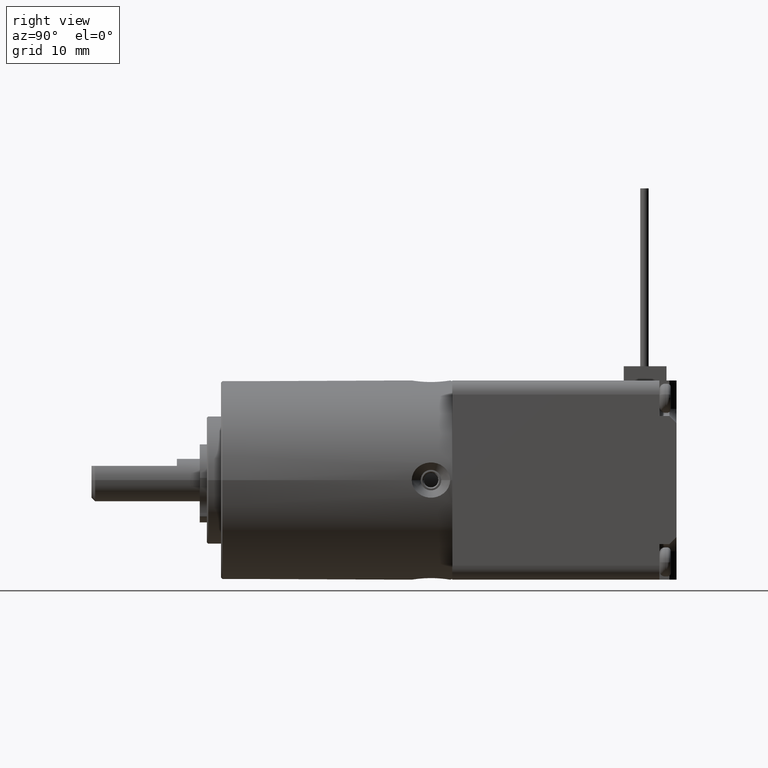
[diagram: clean part render]
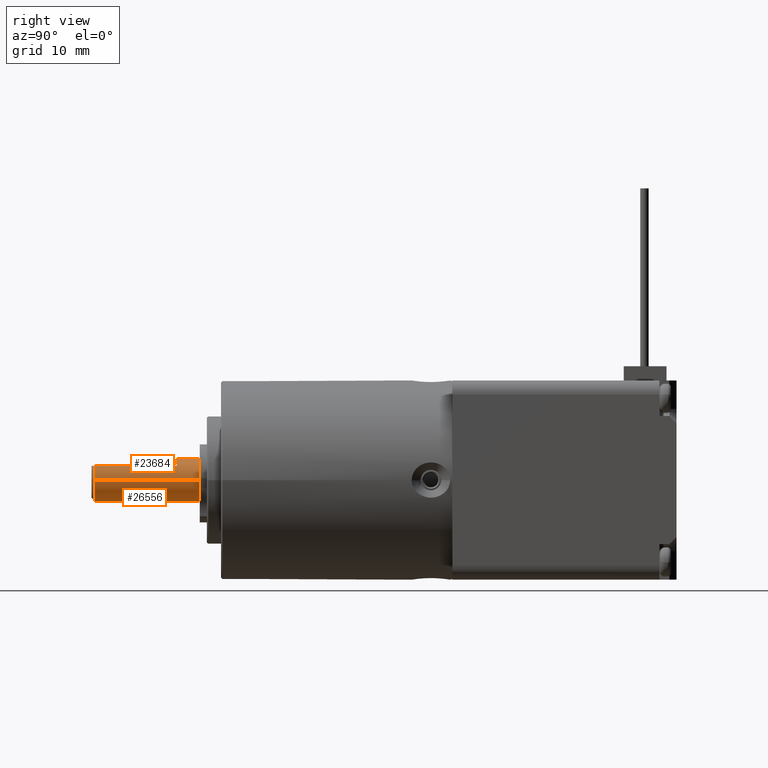
[diagram: same view with one multi-face feature highlighted, each face labeled with its STEP entity id]
A machine part, right view. The highlighted faces form ONE feature: a constant-radius fillet chain: 2 tangent blend faces with common blend radius 3 mm. The faces share edges in the B-rep.
Their STEP definitions:
[1] entity #23684 (Cylinder):
#514 = EDGE_CURVE ( 'NONE', #23940, #24827, #26261, .T. ) ;
#515 = DIRECTION ( 'NONE',  ( 0.000000000000000000, 0.000000000000000000, -1.000000000000000000 ) ) ;
#862 = CARTESIAN_POINT ( 'NONE',  ( 3.000000000000000444, 3.673940397442060361E-16, 27.19999999999999929 ) ) ;
#1060 = CARTESIAN_POINT ( 'NONE',  ( -3.000000000000000444, 0.000000000000000000, 11.99999999999999822 ) ) ;
#1287 = CYLINDRICAL_SURFACE ( 'NONE', #15811, 3.000000000000000444 ) ;
#1372 = LINE ( 'NONE', #11130, #21516 ) ;
#1672 = ORIENTED_EDGE ( 'NONE', *, *, #21352, .T. ) ;
#2316 = ORIENTED_EDGE ( 'NONE', *, *, #16466, .T. ) ;
#2915 = DIRECTION ( 'NONE',  ( 1.000000000000000000, -5.329070518200751394E-15, 0.000000000000000000 ) ) ;
#3264 = LINE ( 'NONE', #862, #15472 ) ;
#4136 = ORIENTED_EDGE ( 'NONE', *, *, #14911, .T. ) ;
#4521 = CARTESIAN_POINT ( 'NONE',  ( 3.000000000000000444, 3.673940397442060361E-16, 11.99999999999999822 ) ) ;
#4572 = CARTESIAN_POINT ( 'NONE',  ( -2.236067977499790693, 2.000000000000000000, 15.19999999999999751 ) ) ;
#5539 = CARTESIAN_POINT ( 'NONE',  ( 2.236067977499790693, 2.000000000000000000, 15.19999999999999751 ) ) ;
#6631 = CARTESIAN_POINT ( 'NONE',  ( 0.000000000000000000, 0.000000000000000000, 11.99999999999999822 ) ) ;
#6641 = VERTEX_POINT ( 'NONE', #22680 ) ;
#7300 = CIRCLE ( 'NONE', #23184, 3.000000000000000444 ) ;
#7789 = DIRECTION ( 'NONE',  ( 1.000000000000000000, 0.000000000000000000, 0.000000000000000000 ) ) ;
#8909 = VERTEX_POINT ( 'NONE', #4572 ) ;
#9075 = DIRECTION ( 'NONE',  ( 1.000000000000000000, 0.000000000000000000, 0.000000000000000000 ) ) ;
#9579 = CIRCLE ( 'NONE', #18294, 3.000000000000000444 ) ;
#10115 = VECTOR ( 'NONE', #30755, 1000.000000000000000 ) ;
#10593 = ORIENTED_EDGE ( 'NONE', *, *, #28180, .T. ) ;
#10614 = DIRECTION ( 'NONE',  ( -0.000000000000000000, -0.000000000000000000, -1.000000000000000000 ) ) ;
#11130 = CARTESIAN_POINT ( 'NONE',  ( -2.236067977499790693, 2.000000000000000000, 27.19999999999999929 ) ) ;
#11666 = AXIS2_PLACEMENT_3D ( 'NONE', #6631, #21539, #24283 ) ;
#12615 = CIRCLE ( 'NONE', #25449, 3.000000000000000444 ) ;
#13017 = CARTESIAN_POINT ( 'NONE',  ( 0.000000000000000000, 0.000000000000000000, 26.69999999999999218 ) ) ;
#13090 = EDGE_LOOP ( 'NONE', ( #1672, #10593, #2316, #27494, #4136, #14204, #21892, #16832 ) ) ;
#13605 = CARTESIAN_POINT ( 'NONE',  ( -3.000000000000000444, 0.000000000000000000, 27.19999999999999929 ) ) ;
#14204 = ORIENTED_EDGE ( 'NONE', *, *, #25054, .T. ) ;
#14911 = EDGE_CURVE ( 'NONE', #23940, #19207, #12615, .T. ) ;
#15439 = CARTESIAN_POINT ( 'NONE',  ( -2.236067977499790693, 2.000000000000000000, 26.69999999999999218 ) ) ;
#15472 = VECTOR ( 'NONE', #10614, 1000.000000000000000 ) ;
#15635 = CARTESIAN_POINT ( 'NONE',  ( 0.000000000000000000, 0.000000000000000000, 26.69999999999999218 ) ) ;
#15707 = CARTESIAN_POINT ( 'NONE',  ( 0.000000000000000000, 0.000000000000000000, 15.19999999999999751 ) ) ;
#15811 = AXIS2_PLACEMENT_3D ( 'NONE', #18269, #30146, #25500 ) ;
#15877 = EDGE_CURVE ( 'NONE', #20763, #8909, #9579, .T. ) ;
#15962 = VECTOR ( 'NONE', #25821, 1000.000000000000000 ) ;
#16022 = CARTESIAN_POINT ( 'NONE',  ( 2.236067977499790693, 2.000000000000000000, 27.19999999999999929 ) ) ;
#16442 = DIRECTION ( 'NONE',  ( -0.000000000000000000, 0.000000000000000000, 1.000000000000000000 ) ) ;
#16466 = EDGE_CURVE ( 'NONE', #21140, #24827, #20886, .T. ) ;
#16832 = ORIENTED_EDGE ( 'NONE', *, *, #26546, .T. ) ;
#18269 = CARTESIAN_POINT ( 'NONE',  ( 0.000000000000000000, 0.000000000000000000, 27.19999999999999929 ) ) ;
#18294 = AXIS2_PLACEMENT_3D ( 'NONE', #15707, #16442, #9075 ) ;
#19207 = VERTEX_POINT ( 'NONE', #15439 ) ;
#19838 = CARTESIAN_POINT ( 'NONE',  ( -3.000000000000000444, 0.000000000000000000, 26.69999999999999218 ) ) ;
#20763 = VERTEX_POINT ( 'NONE', #5539 ) ;
#20886 = CIRCLE ( 'NONE', #11666, 3.000000000000000444 ) ;
#20914 = DIRECTION ( 'NONE',  ( -0.000000000000000000, -0.000000000000000000, -1.000000000000000000 ) ) ;
#21140 = VERTEX_POINT ( 'NONE', #4521 ) ;
#21294 = LINE ( 'NONE', #16022, #15962 ) ;
#21352 = EDGE_CURVE ( 'NONE', #6641, #28899, #7300, .T. ) ;
#21516 = VECTOR ( 'NONE', #20914, 1000.000000000000000 ) ;
#21539 = DIRECTION ( 'NONE',  ( 0.000000000000000000, 0.000000000000000000, 1.000000000000000000 ) ) ;
#21892 = ORIENTED_EDGE ( 'NONE', *, *, #15877, .F. ) ;
#22680 = CARTESIAN_POINT ( 'NONE',  ( 2.236067977499790693, 2.000000000000000000, 26.69999999999999218 ) ) ;
#23184 = AXIS2_PLACEMENT_3D ( 'NONE', #13017, #515, #2915 ) ;
#23684 = ADVANCED_FACE ( 'NONE', ( #25661 ), #1287, .T. ) ;
#23940 = VERTEX_POINT ( 'NONE', #19838 ) ;
#24283 = DIRECTION ( 'NONE',  ( 1.000000000000000000, 0.000000000000000000, 0.000000000000000000 ) ) ;
#24827 = VERTEX_POINT ( 'NONE', #1060 ) ;
#25054 = EDGE_CURVE ( 'NONE', #19207, #8909, #1372, .T. ) ;
#25449 = AXIS2_PLACEMENT_3D ( 'NONE', #15635, #27507, #7789 ) ;
#25500 = DIRECTION ( 'NONE',  ( -1.000000000000000000, 0.000000000000000000, 0.000000000000000000 ) ) ;
#25661 = FACE_OUTER_BOUND ( 'NONE', #13090, .T. ) ;
#25821 = DIRECTION ( 'NONE',  ( 0.000000000000000000, 0.000000000000000000, 1.000000000000000000 ) ) ;
#26261 = LINE ( 'NONE', #13605, #10115 ) ;
#26546 = EDGE_CURVE ( 'NONE', #20763, #6641, #21294, .T. ) ;
#27494 = ORIENTED_EDGE ( 'NONE', *, *, #514, .F. ) ;
#27507 = DIRECTION ( 'NONE',  ( 0.000000000000000000, 0.000000000000000000, -1.000000000000000000 ) ) ;
#28180 = EDGE_CURVE ( 'NONE', #28899, #21140, #3264, .T. ) ;
#28416 = CARTESIAN_POINT ( 'NONE',  ( 3.000000000000000444, 3.673940397442060361E-16, 26.69999999999999218 ) ) ;
#28899 = VERTEX_POINT ( 'NONE', #28416 ) ;
#30146 = DIRECTION ( 'NONE',  ( -0.000000000000000000, -0.000000000000000000, -1.000000000000000000 ) ) ;
#30755 = DIRECTION ( 'NONE',  ( -0.000000000000000000, -0.000000000000000000, -1.000000000000000000 ) ) ;
[2] entity #26556 (Cylinder):
#514 = EDGE_CURVE ( 'NONE', #23940, #24827, #26261, .T. ) ;
#862 = CARTESIAN_POINT ( 'NONE',  ( 3.000000000000000444, 3.673940397442060361E-16, 27.19999999999999929 ) ) ;
#1060 = CARTESIAN_POINT ( 'NONE',  ( -3.000000000000000444, 0.000000000000000000, 11.99999999999999822 ) ) ;
#1428 = ORIENTED_EDGE ( 'NONE', *, *, #17847, .T. ) ;
#2947 = CIRCLE ( 'NONE', #31600, 3.000000000000000444 ) ;
#3264 = LINE ( 'NONE', #862, #15472 ) ;
#3628 = ORIENTED_EDGE ( 'NONE', *, *, #28180, .F. ) ;
#3834 = CYLINDRICAL_SURFACE ( 'NONE', #10310, 3.000000000000000444 ) ;
#4521 = CARTESIAN_POINT ( 'NONE',  ( 3.000000000000000444, 3.673940397442060361E-16, 11.99999999999999822 ) ) ;
#9225 = ORIENTED_EDGE ( 'NONE', *, *, #514, .T. ) ;
#9749 = AXIS2_PLACEMENT_3D ( 'NONE', #17916, #15669, #25469 ) ;
#10115 = VECTOR ( 'NONE', #30755, 1000.000000000000000 ) ;
#10310 = AXIS2_PLACEMENT_3D ( 'NONE', #31090, #21144, #20983 ) ;
#10614 = DIRECTION ( 'NONE',  ( -0.000000000000000000, -0.000000000000000000, -1.000000000000000000 ) ) ;
#11355 = FACE_OUTER_BOUND ( 'NONE', #24692, .T. ) ;
#11873 = ORIENTED_EDGE ( 'NONE', *, *, #14124, .T. ) ;
#13605 = CARTESIAN_POINT ( 'NONE',  ( -3.000000000000000444, 0.000000000000000000, 27.19999999999999929 ) ) ;
#14124 = EDGE_CURVE ( 'NONE', #24827, #21140, #2947, .T. ) ;
#15472 = VECTOR ( 'NONE', #10614, 1000.000000000000000 ) ;
#15669 = DIRECTION ( 'NONE',  ( 0.000000000000000000, 0.000000000000000000, -1.000000000000000000 ) ) ;
#17847 = EDGE_CURVE ( 'NONE', #28899, #23940, #20527, .T. ) ;
#17916 = CARTESIAN_POINT ( 'NONE',  ( 0.000000000000000000, 0.000000000000000000, 26.69999999999999218 ) ) ;
#19838 = CARTESIAN_POINT ( 'NONE',  ( -3.000000000000000444, 0.000000000000000000, 26.69999999999999218 ) ) ;
#20527 = CIRCLE ( 'NONE', #9749, 3.000000000000000444 ) ;
#20983 = DIRECTION ( 'NONE',  ( -1.000000000000000000, 0.000000000000000000, 0.000000000000000000 ) ) ;
#21140 = VERTEX_POINT ( 'NONE', #4521 ) ;
#21144 = DIRECTION ( 'NONE',  ( -0.000000000000000000, -0.000000000000000000, -1.000000000000000000 ) ) ;
#23940 = VERTEX_POINT ( 'NONE', #19838 ) ;
#24692 = EDGE_LOOP ( 'NONE', ( #3628, #1428, #9225, #11873 ) ) ;
#24827 = VERTEX_POINT ( 'NONE', #1060 ) ;
#25469 = DIRECTION ( 'NONE',  ( 1.000000000000000000, 0.000000000000000000, 0.000000000000000000 ) ) ;
#26261 = LINE ( 'NONE', #13605, #10115 ) ;
#26294 = DIRECTION ( 'NONE',  ( 0.000000000000000000, 0.000000000000000000, 1.000000000000000000 ) ) ;
#26556 = ADVANCED_FACE ( 'NONE', ( #11355 ), #3834, .T. ) ;
#28180 = EDGE_CURVE ( 'NONE', #28899, #21140, #3264, .T. ) ;
#28416 = CARTESIAN_POINT ( 'NONE',  ( 3.000000000000000444, 3.673940397442060361E-16, 26.69999999999999218 ) ) ;
#28899 = VERTEX_POINT ( 'NONE', #28416 ) ;
#30755 = DIRECTION ( 'NONE',  ( -0.000000000000000000, -0.000000000000000000, -1.000000000000000000 ) ) ;
#30787 = DIRECTION ( 'NONE',  ( 1.000000000000000000, 0.000000000000000000, 0.000000000000000000 ) ) ;
#31090 = CARTESIAN_POINT ( 'NONE',  ( 0.000000000000000000, 0.000000000000000000, 27.19999999999999929 ) ) ;
#31426 = CARTESIAN_POINT ( 'NONE',  ( 0.000000000000000000, 0.000000000000000000, 11.99999999999999822 ) ) ;
#31600 = AXIS2_PLACEMENT_3D ( 'NONE', #31426, #26294, #30787 ) ;